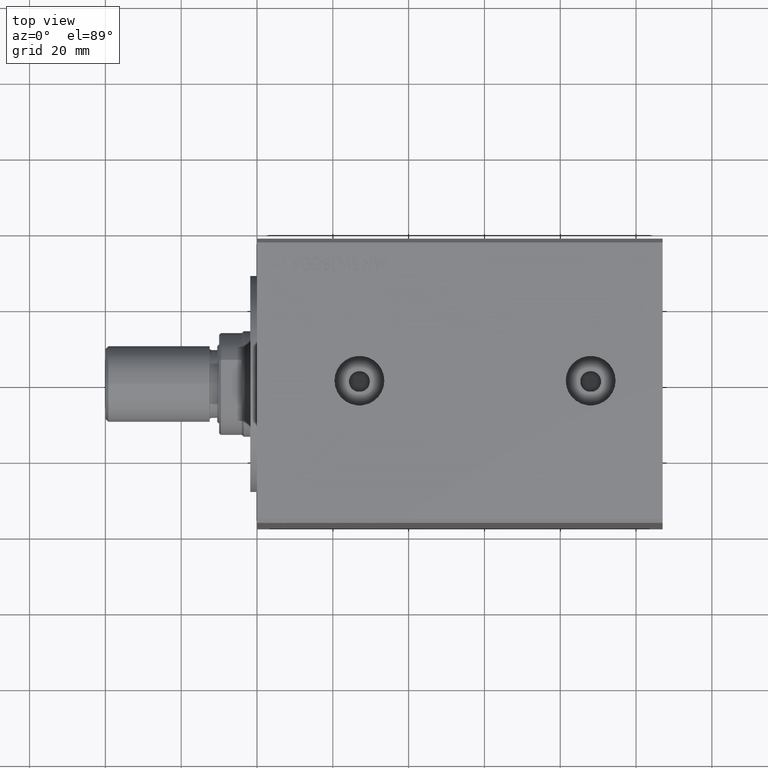
[diagram: clean part render]
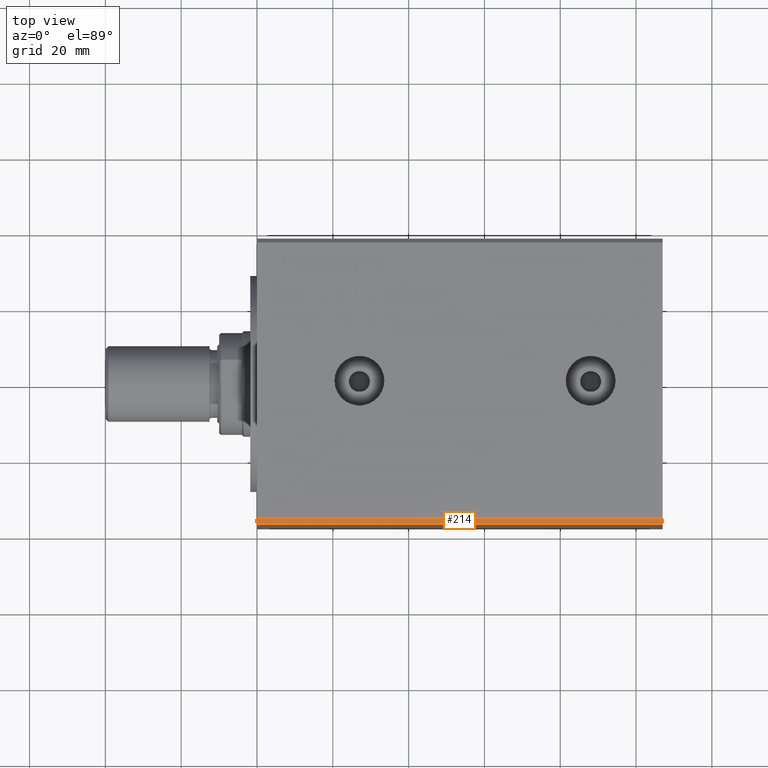
[diagram: same view with one face highlighted and labeled with its STEP entity id]
A machine part, top view. The second image highlights one B-rep face of the part: STEP entity #214.
In plain terms, the highlighted planar face has unit normal (0, 0.7071, -0.7071).
Its self-contained STEP definition (entity closure, byte-faithful):
#51 = AXIS2_PLACEMENT_3D ( 'NONE', #35170, #34500, #21032 ) ;
#214 = ADVANCED_FACE ( 'NONE', ( #41916 ), #14513, .F. ) ;
#585 = EDGE_LOOP ( 'NONE', ( #4812, #30862, #3651, #4741 ) ) ;
#2932 = EDGE_CURVE ( 'NONE', #11386, #31895, #17929, .T. ) ;
#3404 = CARTESIAN_POINT ( 'NONE',  ( 107.0000000000000000, -36.50000000000001421, 49.99999999999998579 ) ) ;
#3651 = ORIENTED_EDGE ( 'NONE', *, *, #2932, .F. ) ;
#4741 = ORIENTED_EDGE ( 'NONE', *, *, #15871, .T. ) ;
#4812 = ORIENTED_EDGE ( 'NONE', *, *, #10016, .T. ) ;
#7398 = VECTOR ( 'NONE', #24482, 1000.000000000000114 ) ;
#10016 = EDGE_CURVE ( 'NONE', #43946, #34661, #16872, .T. ) ;
#11386 = VERTEX_POINT ( 'NONE', #30639 ) ;
#13916 = CARTESIAN_POINT ( 'NONE',  ( 107.0000000000000000, -37.50000000000001421, 48.99999999999998579 ) ) ;
#14513 = PLANE ( 'NONE',  #51 ) ;
#15179 = CARTESIAN_POINT ( 'NONE',  ( 0.000000000000000000, -36.50000000000001421, 49.99999999999998579 ) ) ;
#15871 = EDGE_CURVE ( 'NONE', #11386, #43946, #37566, .T. ) ;
#16872 = LINE ( 'NONE', #31440, #7398 ) ;
#17929 = LINE ( 'NONE', #41500, #33873 ) ;
#21032 = DIRECTION ( 'NONE',  ( 0.000000000000000000, 0.7071067811865474617, 0.7071067811865474617 ) ) ;
#22290 = CARTESIAN_POINT ( 'NONE',  ( 107.0000000000000000, -37.50000000000001421, 48.99999999999998579 ) ) ;
#24482 = DIRECTION ( 'NONE',  ( 0.000000000000000000, -0.7071067811865474617, -0.7071067811865474617 ) ) ;
#26956 = VECTOR ( 'NONE', #40504, 1000.000000000000000 ) ;
#27411 = DIRECTION ( 'NONE',  ( -1.000000000000000000, -0.000000000000000000, -0.000000000000000000 ) ) ;
#30639 = CARTESIAN_POINT ( 'NONE',  ( 107.0000000000000000, -36.50000000000001421, 49.99999999999998579 ) ) ;
#30862 = ORIENTED_EDGE ( 'NONE', *, *, #34797, .F. ) ;
#31440 = CARTESIAN_POINT ( 'NONE',  ( 0.000000000000000000, -36.50000000000001421, 49.99999999999998579 ) ) ;
#31609 = DIRECTION ( 'NONE',  ( 0.000000000000000000, -0.7071067811865474617, -0.7071067811865474617 ) ) ;
#31895 = VERTEX_POINT ( 'NONE', #22290 ) ;
#33311 = LINE ( 'NONE', #13916, #44315 ) ;
#33873 = VECTOR ( 'NONE', #31609, 1000.000000000000114 ) ;
#34500 = DIRECTION ( 'NONE',  ( 0.000000000000000000, 0.7071067811865475727, -0.7071067811865475727 ) ) ;
#34661 = VERTEX_POINT ( 'NONE', #35352 ) ;
#34797 = EDGE_CURVE ( 'NONE', #31895, #34661, #33311, .T. ) ;
#35170 = CARTESIAN_POINT ( 'NONE',  ( 107.0000000000000000, -36.50000000000001421, 49.99999999999998579 ) ) ;
#35352 = CARTESIAN_POINT ( 'NONE',  ( 0.000000000000000000, -37.50000000000001421, 48.99999999999998579 ) ) ;
#37566 = LINE ( 'NONE', #3404, #26956 ) ;
#40504 = DIRECTION ( 'NONE',  ( -1.000000000000000000, -0.000000000000000000, -0.000000000000000000 ) ) ;
#41500 = CARTESIAN_POINT ( 'NONE',  ( 107.0000000000000000, -36.50000000000001421, 49.99999999999998579 ) ) ;
#41916 = FACE_OUTER_BOUND ( 'NONE', #585, .T. ) ;
#43946 = VERTEX_POINT ( 'NONE', #15179 ) ;
#44315 = VECTOR ( 'NONE', #27411, 1000.000000000000000 ) ;